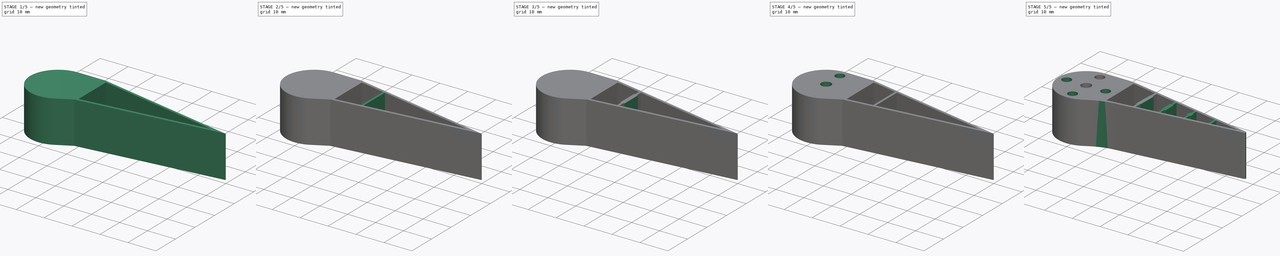
[diagram: build sequence overview — one tinted view per stage of 5, left to right]
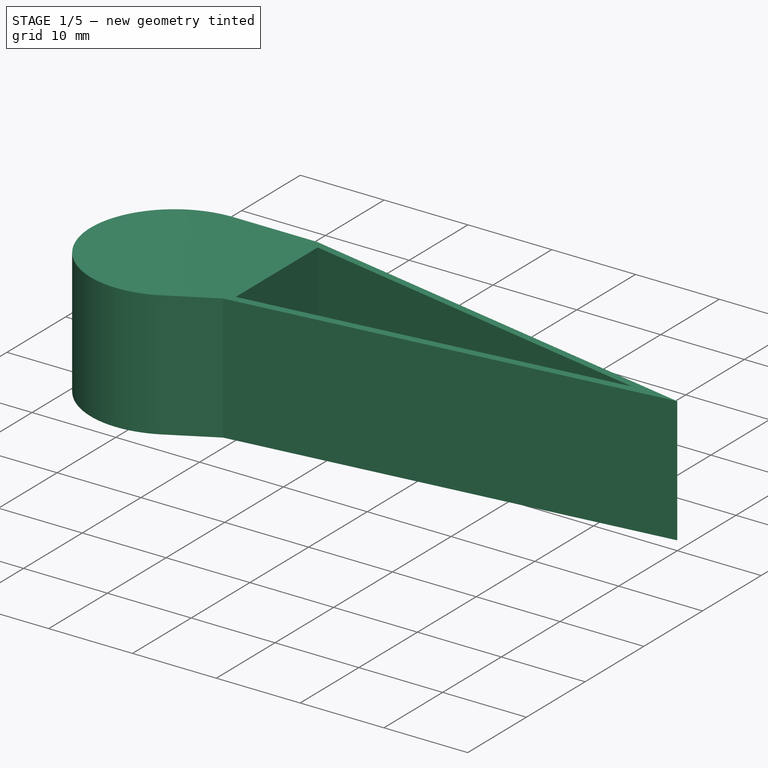
[diagram: stage 1 of 5 — iso view after this stage's code; geometry added in this stage tinted green]
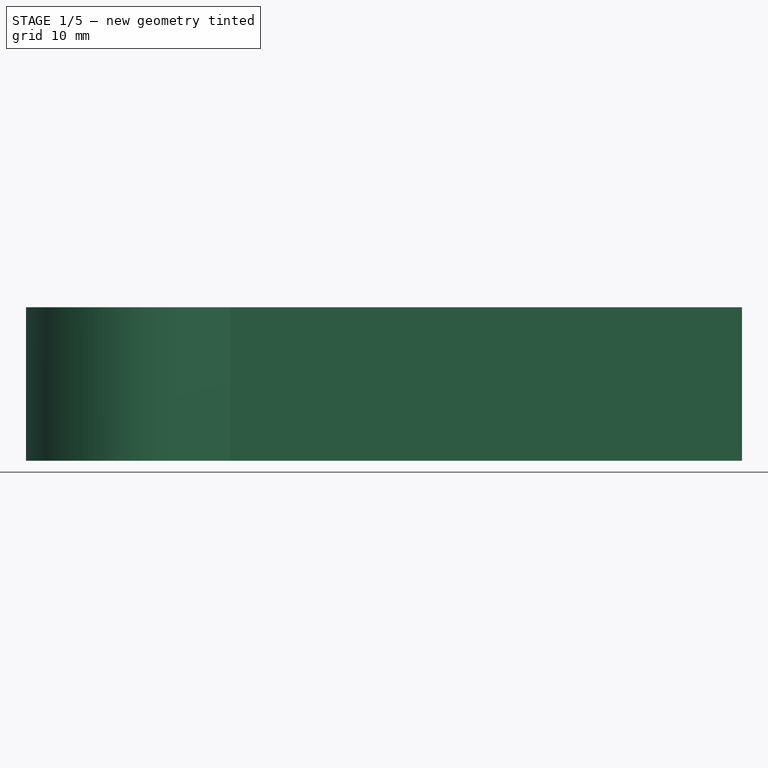
[diagram: stage 1 of 5 — front view after this stage's code; geometry added in this stage tinted green]
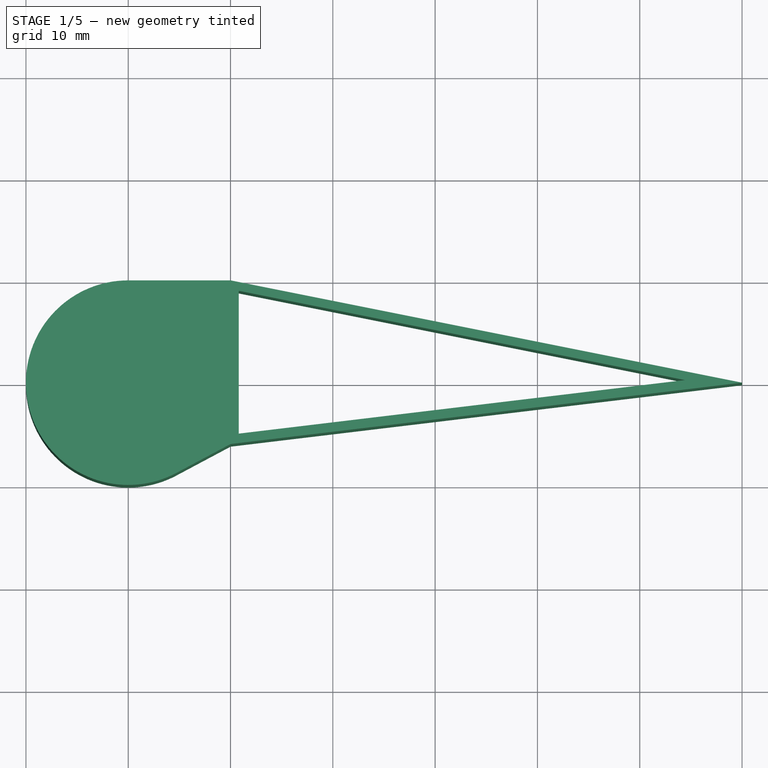
[diagram: stage 1 of 5 — top view after this stage's code; geometry added in this stage tinted green]
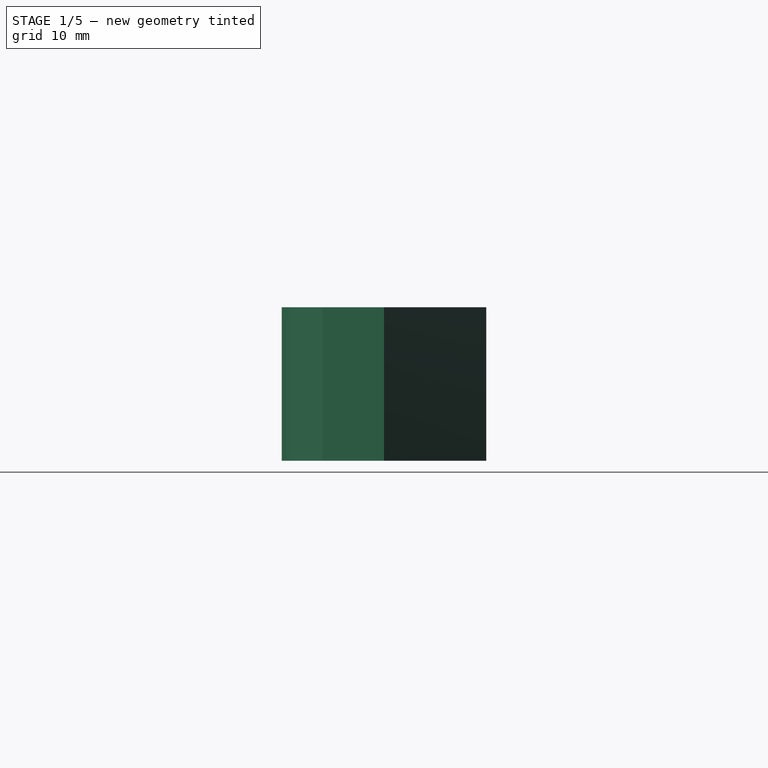
[diagram: stage 1 of 5 — right view after this stage's code; geometry added in this stage tinted green]
FCSTD DOCUMENT  (FreeCAD 2022.1128R26244 +5318 (Git))
Label: adptative-gripper-finger
License: Creative Commons Attribution-NoDerivatives
LicenseURL: http://creativecommons.org/licenses/by-nd/4.0/
objects: PartDesign::SubShapeBinder×11, Sketcher::SketchExport×5, PartDesign::Boolean×4, PartDesign::Body×4, Sketcher::SketchObject×4, Part::Extrusion×3, PartDesign::Pad×2, PartDesign::LinearPattern×2, PartDesign::Pocket×2, PartDesign::Fillet×2, Spreadsheet::Sheet×1, App::Link×1, PartDesign::PolarPattern×1, App::DocumentObjectGroup×1
note: 66 computed .brp shape members not serialized (recipe doc carries the construction recipe); baked Part::Feature solids carry a one-line shape summary decoded from their .brp

FEATURE [PartDesign::Body] Body  label="Nervure"
  AutoGroupSolids = false
  ClaimAllChildren = false
  ExportMode = 0
  Group = -> [Import001,Pad001,LinearPattern,Boolean001]
  Origin = -> Origin
  Tip = -> Boolean001
  TreeRank = 21
  _ExportChildren = -> [Pad001,LinearPattern,Boolean001]
  _GroupVersion = 1
FEATURE [Sketcher::SketchObject] Sketch002
  ArcFitTolerance = 1e-06
  AttachmentSupport = -> [XY_Plane003]
  ExternalBSplineMaxDegree = 0
  ExternalBSplineTolerance = 0
  FullyConstrained = true
  InternalTolerance = 1e-06
  MakeInternals = false
  MapMode = 5
  Support = -> [XY_Plane003]
  TreeRank = 77
  sketch-geometry (1):
    g0: Circle CenterX=0 CenterY=0 CenterZ=0 NormalX=0 NormalY=0 NormalZ=1 AngleXU=0 Radius=1.75
  constraints (2):
    c: Coincident(g0,g-1)
    c: Diameter(g0) = 3.5
FEATURE [Sketcher::SketchObject] Sketch003
  ArcFitTolerance = 1e-06
  AttachmentSupport = -> [XY_Plane003]
  ExternalBSplineMaxDegree = 0
  ExternalBSplineTolerance = 0
  FullyConstrained = true
  InternalTolerance = 1e-06
  MakeInternals = false
  MapMode = 5
  Support = -> [XY_Plane003]
  TreeRank = 79
  sketch-geometry (1):
    g0: Circle CenterX=0 CenterY=7 CenterZ=0 NormalX=0 NormalY=0 NormalZ=1 AngleXU=0 Radius=1.6
  constraints (3):
    c: PointOnObject(g0,g-2)
    c: Diameter(g0) = 3.2
    c: DistanceY(g0) = 7
FEATURE [App::Link] Link  label="Link(AdaptativeGripper)"
  AutoLinkLabel = true
  AutoPlacement = true
  LinkedObject = -> Body003
  ShowElement = false
  SyncGroupVisibility = false
  TreeRank = 82
  _LinkVersion = 1
FEATURE [PartDesign::SubShapeBinder] Reference009  label="Reference009(CorpsComplet)"
  BindCopyOnChange = 0
  BindMode = 0
  ClaimChildren = false
  EdgeTolerance = 1e-06
  FillStyle = 0
  Fuse = true
  MakeFace = true
  MergeEdges = true
  OffsetFill = false
  OffsetIntersection = false
  OffsetJoinType = 0
  OffsetOpenResult = false
  Outline = false
  PartialLoad = false
  Relative = true
  SplitEdges = false
  Support = -> [Extrude]
  TightBound = false
  TreeRank = 85
  _Version = 8
FEATURE [PartDesign::SubShapeBinder] Reference010  label="Reference010(CorpsInterieur)"
  BindCopyOnChange = 0
  BindMode = 0
  ClaimChildren = false
  EdgeTolerance = 1e-06
  FillStyle = 0
  Fuse = true
  MakeFace = true
  MergeEdges = true
  OffsetFill = false
  OffsetIntersection = false
  OffsetJoinType = 0
  OffsetOpenResult = false
  Outline = false
  PartialLoad = false
  Relative = true
  SplitEdges = false
  Support = -> [Extrude001]
  TightBound = false
  TreeRank = 86
  _Version = 8
FEATURE [PartDesign::Boolean] Boolean002
  ClaimAllChildren = false
  ExportMode = 0
  Group = -> [Reference009,Reference010]
  NewSolid = false
  Refine = true
  Suppress = false
  TreeRank = 58
  Type = 1
  _ExportChildren = -> [Reference009,Reference010]
  _GroupVersion = 1
FEATURE [PartDesign::Body] Body003  label="AdaptativeGripper"
  AutoGroupSolids = false
  ClaimAllChildren = false
  ExportMode = 0
  Group = -> [Boolean003,Sketch002,Pocket,Sketch003,Pocket001,PolarPattern,Fillet,Fillet001]
  Origin = -> Origin003
  Tip = -> Fillet001
  TreeRank = 71
  _ExportChildren = -> [Boolean003,Pocket,Pocket001,PolarPattern,Fillet,Fillet001]
  _GroupVersion = 1
FEATURE [Sketcher::SketchObject] Sketch
  ArcFitTolerance = 1e-06
  Exports = -> [Export001,Export002,Export005]
  ExternalBSplineMaxDegree = 0
  ExternalBSplineTolerance = 0
  FullyConstrained = true
  InternalTolerance = 1e-06
  MakeInternals = false
  TreeRank = 2
  expr: Constraints[12] = Spreadsheet.LongueurPince
  expr: Constraints[13] = Spreadsheet.LargeurPince
  expr: Constraints[14] = Spreadsheet.LargeurPince / 2 + Spreadsheet.DecalagePince
  expr: Constraints[27] = Spreadsheet.EpaisseurPince
  expr: Constraints[28] = Spreadsheet.LongueurJoint
  sketch-geometry (18):
    g0: ArcOfCircle CenterX=1.2424e-12 CenterY=2.454e-12 CenterZ=0 NormalX=0 NormalY=0 NormalZ=1 AngleXU=0 Radius=10 StartAngle=1.5708 EndAngle=5.20235
    g1: LineSegment StartX=-4.60203e-11 StartY=10 StartZ=0 EndX=10 EndY=10 EndZ=0
    g2: LineSegment StartX=4.70588 StartY=-8.82353 StartZ=0 EndX=10 EndY=-6 EndZ=0
    g3: LineSegment StartX=10 StartY=10 StartZ=0 EndX=60 EndY=2.593e-13 EndZ=0
    g4: LineSegment StartX=10 StartY=-6 StartZ=0 EndX=60 EndY=2.593e-13 EndZ=0
    g5: LineSegment [constr] StartX=10 StartY=10 StartZ=0 EndX=10 EndY=-6 EndZ=0
    g6: Circle [constr] CenterX=1.2424e-12 CenterY=2.454e-12 CenterZ=0 NormalX=0 NormalY=0 NormalZ=1 AngleXU=0 Radius=10
    g7: GeomPoint [constr] X=60 Y=2.591e-13 Z=0
    g8: LineSegment StartX=10.8 StartY=-4.98182 StartZ=0 EndX=10.8 EndY=8.98182 EndZ=0
    g9: LineSegment StartX=10.8 StartY=8.98182 StartZ=0 EndX=54.4364 EndY=0.254545 EndZ=0
    g10: LineSegment StartX=54.4364 StartY=0.254545 StartZ=0 EndX=10.8 EndY=-4.98182 EndZ=0
    g11: LineSegment StartX=10.8 StartY=-2.98182 StartZ=0 EndX=10.8 EndY=6.98182 EndZ=0
    g12: LineSegment StartX=10.8 StartY=6.98182 StartZ=0 EndX=41.9364 EndY=0.754545 EndZ=0
    g13: LineSegment StartX=41.9364 StartY=0.754545 StartZ=0 EndX=10.8 EndY=-2.98182 EndZ=0
    g14: GeomPoint [constr] X=10.8 Y=2 Z=0
    g15: LineSegment [constr] StartX=10.8 StartY=8.98182 StartZ=0 EndX=10 EndY=8.98182 EndZ=0
    g16: LineSegment [constr] StartX=10.8 StartY=2 StartZ=0 EndX=10 EndY=2 EndZ=0
    g17: LineSegment [constr] StartX=10 StartY=-6 StartZ=0 EndX=10.8 EndY=-4.98182 EndZ=0
  constraints (43):
    c: Coincident(g0,g-1)
    c: Tangent(g1,g0) = 1.5708
    c: Tangent(g2,g0) = -1.5708
    c: Coincident(g3,g1)
    c: Coincident(g4,g2)
    c: Diameter(g0) = 20
    c: Coincident(g5,g1)
    c: Coincident(g5,g2)
    c: Vertical(g5)
    c: Coincident(g6,g0)
    c: PointOnObject(g0,g6)
    c: Tangent(g5,g6)
    c: DistanceX(g1,g7) = 50
    c: DistanceY(g2,g1) = 16
    c: DistanceY(g1) = 10
    c: PointOnObject(g7,g-1)
    c: Vertical(g8)
    c: Coincident(g9,g8)
    c: Coincident(g10,g9)
    c: Coincident(g10,g8)
    c: Parallel(g9,g3)
    c: Parallel(g10,g4)
    c: Coincident(g12,g11)
    c: Coincident(g13,g12)
    c: Coincident(g13,g11)
    c: Parallel(g13,g10)
    c: Parallel(g12,g9)
    c: DistanceX(g2,g8) = 0.8
    c: DistanceY(g11,g8) = 2
    c: Symmetric(g11,g11,g14)
    c: Coincident(g15,g8)
    c: PointOnObject(g15,g5)
    c: Horizontal(g15)
    c: PointOnObject(g11,g8)
    c: Coincident(g16,g14)
    c: Horizontal(g16)
    c: Symmetric(g1,g2,g16)
    c: Symmetric(g8,g8,g14)
    c: Coincident(g17,g2)
    c: Coincident(g17,g8)
    c: Angle(g4,g17) = 0.785398
    c: Coincident(g3,g4)
    c: Coincident(g7,g3)
FEATURE [Sketcher::SketchExport] Export001
  Base = -> Sketch
  BaseRefs = -> Sketch [edge11,edge9,edge10]
  Refs = ;g15.edge11 | ;g13.edge9 | ;g14.edge10
  SyncPlacement = true
  TreeRank = 4
FEATURE [Sketcher::SketchExport] Export002
  Base = -> Sketch
  BaseRefs = -> Sketch [edge12,edge13,edge14]
  Refs = ;g19.edge12 | ;g20.edge13 | ;g21.edge14
  SyncPlacement = true
  TreeRank = 5
FEATURE [Sketcher::SketchObject] Sketch001
  ArcFitTolerance = 1e-06
  Exports = -> [Export003,Export004]
  ExternalBSplineMaxDegree = 0
  ExternalBSplineTolerance = 0
  FullyConstrained = true
  InternalTolerance = 1e-06
  MakeInternals = false
  Placement = pos=(0,0,0) rot=(-1,0,0;4.71239rad)
  TreeRank = 6
  expr: Constraints[12] = Spreadsheet.HauteurPince
  expr: Constraints[13] = Spreadsheet.DiametreFixation / 2 + Spreadsheet.LongueurPince / (Spreadsheet.NombreNervure + 1)
  expr: Constraints[14] = Spreadsheet.EpaisseurNervure
  expr: Constraints[25] = Spreadsheet.FinesseJoint
  sketch-geometry (9):
    g0: LineSegment StartX=19.25 StartY=1.5001e-12 StartZ=0 EndX=20.75 EndY=1.5001e-12 EndZ=0
    g1: LineSegment StartX=20.75 StartY=1.5001e-12 StartZ=0 EndX=20.75 EndY=15 EndZ=0
    g2: LineSegment StartX=20.75 StartY=15 StartZ=0 EndX=19.25 EndY=15 EndZ=0
    g3: LineSegment StartX=19.25 StartY=15 StartZ=0 EndX=19.25 EndY=1.4992e-12 EndZ=0
    g4: LineSegment [constr] StartX=20 StartY=15 StartZ=0 EndX=20 EndY=-1.7515e-12 EndZ=0
    g5: LineSegment StartX=19.6 StartY=15 StartZ=0 EndX=20.4 EndY=15 EndZ=0
    g6: LineSegment StartX=20.4 StartY=15 StartZ=0 EndX=20.4 EndY=5.169e-13 EndZ=0
    g7: LineSegment StartX=20.4 StartY=5.168e-13 StartZ=0 EndX=19.6 EndY=5.168e-13 EndZ=0
    g8: LineSegment StartX=19.6 StartY=5.168e-13 StartZ=0 EndX=19.6 EndY=15 EndZ=0
  constraints (26):
    c: Coincident(g0,g1)
    c: Coincident(g1,g2)
    c: Coincident(g2,g3)
    c: Coincident(g3,g0)
    c: Horizontal(g0)
    c: Horizontal(g2)
    c: Vertical(g1)
    c: Vertical(g3)
    c: PointOnObject(g0,g-1)
    c: PointOnObject(g4,g0)
    c: Vertical(g4)
    c: Symmetric(g2,g1,g4)
    c: DistanceY(g3,g3) = 15
    c: DistanceX(g4) = 20
    c: DistanceX(g2,g2) = 1.5
    c: Coincident(g5,g6)
    c: Coincident(g6,g7)
    c: Coincident(g7,g8)
    c: Coincident(g8,g5)
    c: Horizontal(g5)
    c: Horizontal(g7)
    c: Vertical(g6)
    c: Vertical(g8)
    c: PointOnObject(g5,g2)
    c: Symmetric(g7,g6,g4)
    c: DistanceX(g5,g5) = 0.8
FEATURE [Sketcher::SketchExport] Export003
  Base = -> Sketch001
  BaseRefs = -> Sketch001 [edge3,edge4,edge2,edge1]
  Placement = pos=(0,0,0) rot=(-1,0,0;4.71239rad)
  Refs = ;g3.edge3 | ;g4.edge4 | ;g2.edge2 | ;g1.edge1
  SyncPlacement = true
  TreeRank = 7
FEATURE [Sketcher::SketchExport] Export004
  Base = -> Sketch001
  BaseRefs = -> Sketch001 [edge6,edge7,edge8,edge9]
  Placement = pos=(0,0,0) rot=(-1,0,0;4.71239rad)
  Refs = ;g6.edge6 | ;g7.edge7 | ;g8.edge8 | ;g9.edge9
  SyncPlacement = true
  TreeRank = 8
FEATURE [Part::Extrusion] Extrude001  label="CorpsInterieur"
  AutoTaperInnerAngle = false
  Base = -> Export001
  Dir = (0,0,1)
  DirMode = 2
  FaceMakerClass = Part::FaceMakerBullseye
  LengthFwd = 16
  LengthRev = 0
  Linearize = true
  Solid = true
  Symmetric = false
  TaperInnerAngle = 0
  TaperInnerAngleRev = 0
  TreeRank = 10
  expr: LengthFwd = Spreadsheet.HauteurPince + 1
FEATURE [App::DocumentObjectGroup] Group  label="Tools"
  ClaimAllChildren = true
  ExportMode = 1
  Group = -> [Spreadsheet,Sketch,Sketch001,Extrude001,Extrude002,Extrude,Body,Body001,Body002,Export003,Export004]
  TreeRank = 70
  _GroupVersion = 1
FEATURE [Sketcher::SketchExport] Export005
  Base = -> Sketch
  BaseRefs = -> Sketch [edge1,edge3,edge5,edge4,edge2]
  Refs = ;g1.edge1 | ;g3.edge3 | ;g5.edge5 | ;g4.edge4 | ;g2.edge2
  SyncPlacement = true
  TreeRank = 83
FEATURE [Part::Extrusion] Extrude  label="CorpsComplet"
  AutoTaperInnerAngle = false
  Base = -> Export005
  Dir = (0,0,1)
  DirMode = 2
  FaceMakerClass = Part::FaceMakerBullseye
  LengthFwd = 15
  LengthRev = 0
  Linearize = true
  Solid = true
  Symmetric = false
  TaperInnerAngle = 0
  TaperInnerAngleRev = 0
  TreeRank = 84
  expr: LengthFwd = Spreadsheet.HauteurPince
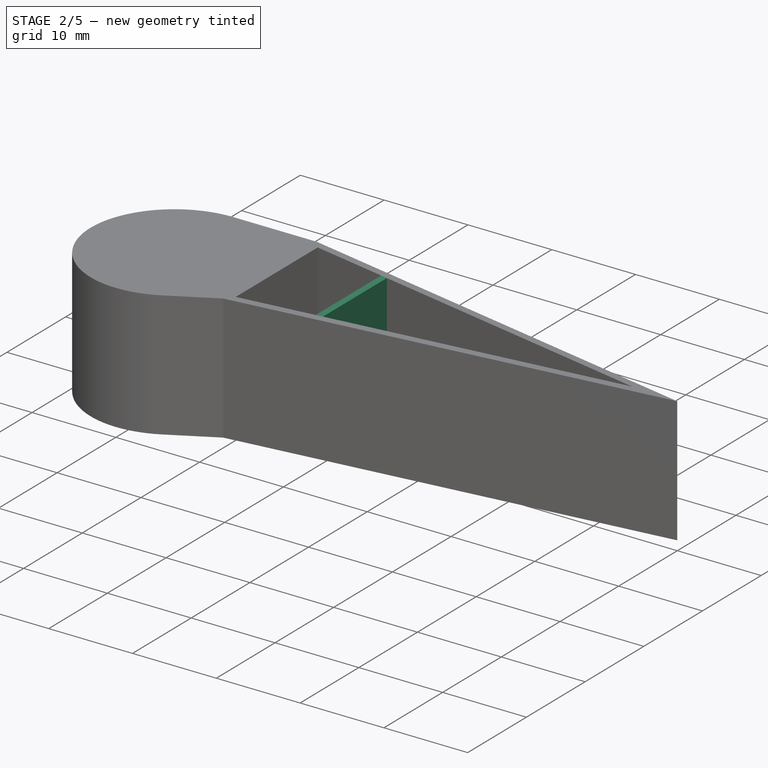
[diagram: stage 2 of 5 — iso view after this stage's code; geometry added in this stage tinted green]
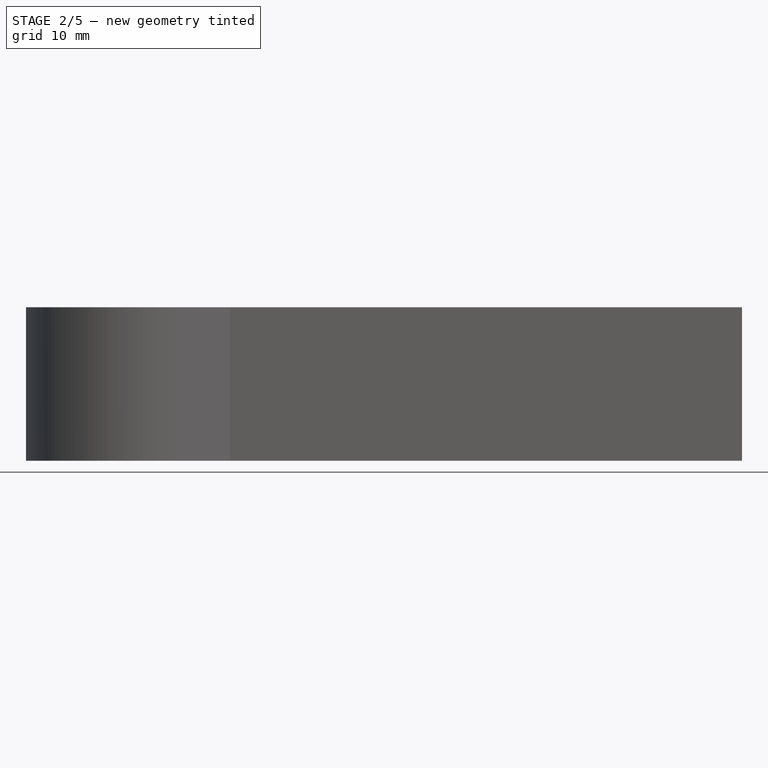
[diagram: stage 2 of 5 — front view after this stage's code; geometry added in this stage tinted green]
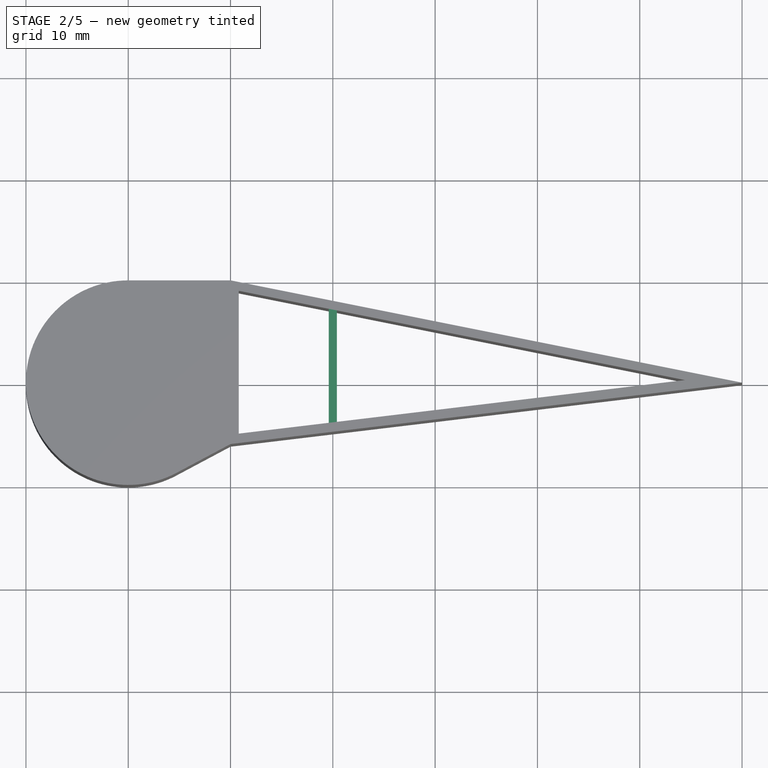
[diagram: stage 2 of 5 — top view after this stage's code; geometry added in this stage tinted green]
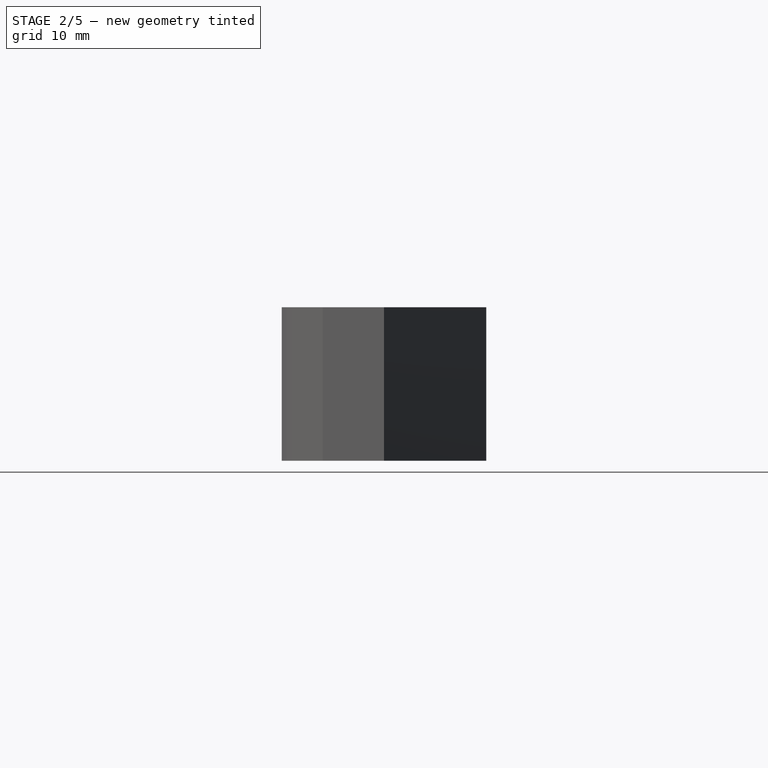
[diagram: stage 2 of 5 — right view after this stage's code; geometry added in this stage tinted green]
FEATURE [Spreadsheet::Sheet] Spreadsheet
  PythonMode = false
  ShowCells = 0
  TreeRank = 1
  cells = G4=PINCE GLOBALE; G5=Largeur; H5(LargeurPince)=16; G6=Longueur; H6(LongueurPince)=50; G7=Hauteur; H7(HauteurPince)=15; G8=Decalage; H8(DecalagePince)=2; G9=Epaisseur; H9(EpaisseurPince)=0.8; G10=Diamètre; H10(DiametrePince)=4; G11=NERVURES; G12=Nombre; H12(NombreNervure)=4; G13=Epaisseur; H13(EpaisseurNervure)=1.5; G14=Epaisseur fine; H14(FinesseJoint)=0.8; G15=Longueur joint; H15(LongueurJoint)=2; G16=FIXATION; G17=Diametre; H17(DiametreFixation)=20
FEATURE [PartDesign::SubShapeBinder] Import  label="Import(Export004)"
  BindCopyOnChange = 0
  BindMode = 0
  ClaimChildren = false
  Context = -> Group [Body001.Import.]
  EdgeTolerance = 1e-06
  FillStyle = 0
  Fuse = false
  MakeFace = false
  MergeEdges = true
  OffsetFill = false
  OffsetIntersection = false
  OffsetJoinType = 0
  OffsetOpenResult = false
  Outline = false
  PartialLoad = false
  Relative = true
  SplitEdges = false
  Support = -> [Export004]
  TightBound = false
  TreeRank = 32
  _Version = 8
FEATURE [PartDesign::Pad] Pad
  AddSubType = 0
  AlongSketchNormal = false
  AutoTaperInnerAngle = false
  CheckUpToFaceLimits = true
  ClaimChildren = false
  Direction = (0,1,-2e-16)
  Fit = 0
  FitJoin = 0
  InnerFit = 0
  InnerFitJoin = 0
  Length = 32
  Length2 = 100
  Linearize = true
  Midplane = true
  NewSolid = false
  Profile = -> Import
  Refine = true
  Suppress = false
  TaperInnerAngle = 0
  TaperInnerAngleRev = 0
  TreeRank = 33
  Type = 0
  _ProfileBasedVersion = 1
  expr: Length = Spreadsheet.LargeurPince * 2
FEATURE [PartDesign::LinearPattern] LinearPattern001
  AddSubType = 0
  BaseFeature = -> Pad
  CopyShape = false
  Direction = -> X_Axis001
  Length = 25
  NewSolid = false
  Occurrences = 4
  OriginalSubs = -> [Pad]
  Originals = -> [Pad]
  ParallelTransform = true
  Refine = true
  SubTransform = true
  Suppress = false
  TreeRank = 37
  _Version = 3
  expr: Length = Spreadsheet.LongueurPince - 2 * Spreadsheet.LongueurPince / Spreadsheet.NombreNervure
  expr: Occurrences = Spreadsheet.NombreNervure
FEATURE [PartDesign::SubShapeBinder] Reference  label="Reference(CorpsInterieur)"
  BindCopyOnChange = 0
  BindMode = 0
  ClaimChildren = false
  Context = -> Body001 [Reference.]
  EdgeTolerance = 1e-06
  FillStyle = 0
  Fuse = false
  MakeFace = true
  MergeEdges = true
  OffsetFill = false
  OffsetIntersection = false
  OffsetJoinType = 0
  OffsetOpenResult = false
  Outline = false
  PartialLoad = false
  Relative = true
  SplitEdges = false
  Support = -> [Extrude001]
  TightBound = false
  TreeRank = 41
  _Version = 8
FEATURE [PartDesign::SubShapeBinder] Reference001  label="Reference001(LinearPattern001)"
  BindCopyOnChange = 0
  BindMode = 0
  ClaimChildren = false
  Context = -> Body001 [Reference001.]
  EdgeTolerance = 1e-06
  FillStyle = 0
  Fuse = false
  MakeFace = true
  MergeEdges = true
  OffsetFill = false
  OffsetIntersection = false
  OffsetJoinType = 0
  OffsetOpenResult = false
  Outline = false
  PartialLoad = false
  Relative = true
  SplitEdges = false
  Support = -> [LinearPattern001]
  TightBound = false
  TreeRank = 42
  _Version = 8
FEATURE [PartDesign::Boolean] Boolean
  BaseFeature = -> LinearPattern001
  ClaimAllChildren = false
  ExportMode = 0
  Group = -> [Reference,Reference001]
  NewSolid = false
  Refine = true
  Suppress = false
  TreeRank = 38
  Type = 2
  _ExportChildren = -> [Reference,Reference001]
  _GroupVersion = 1
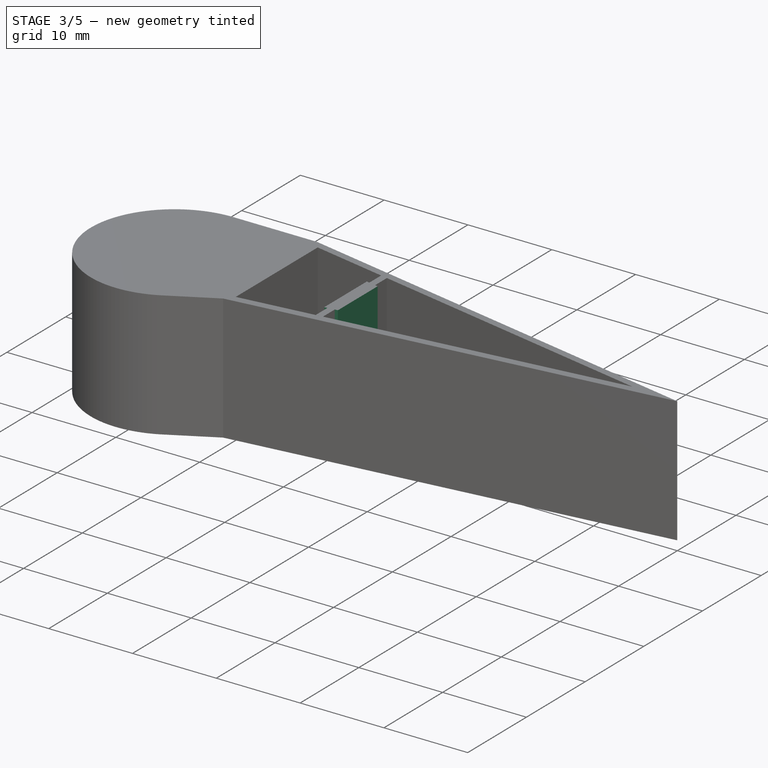
[diagram: stage 3 of 5 — iso view after this stage's code; geometry added in this stage tinted green]
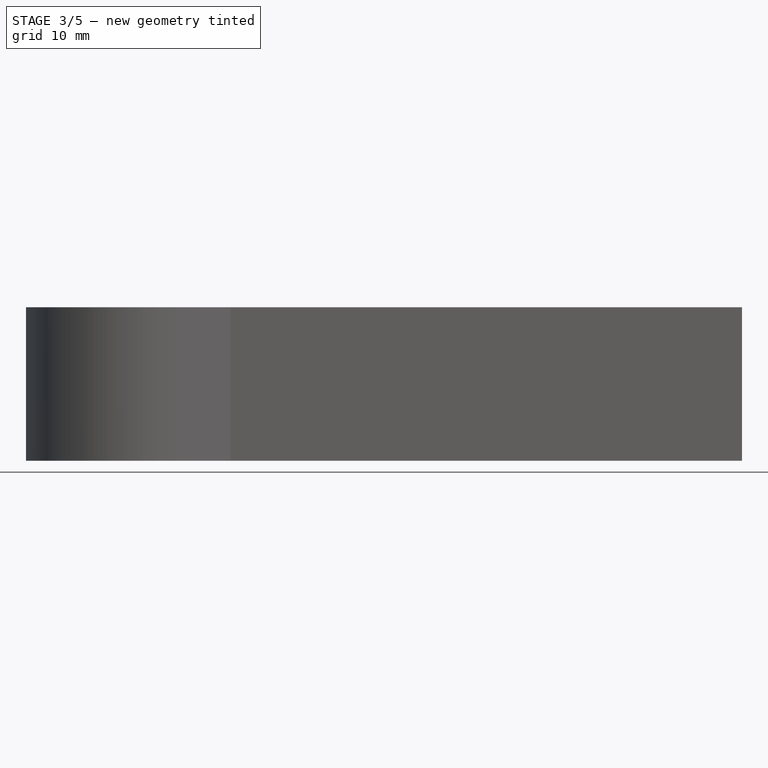
[diagram: stage 3 of 5 — front view after this stage's code; geometry added in this stage tinted green]
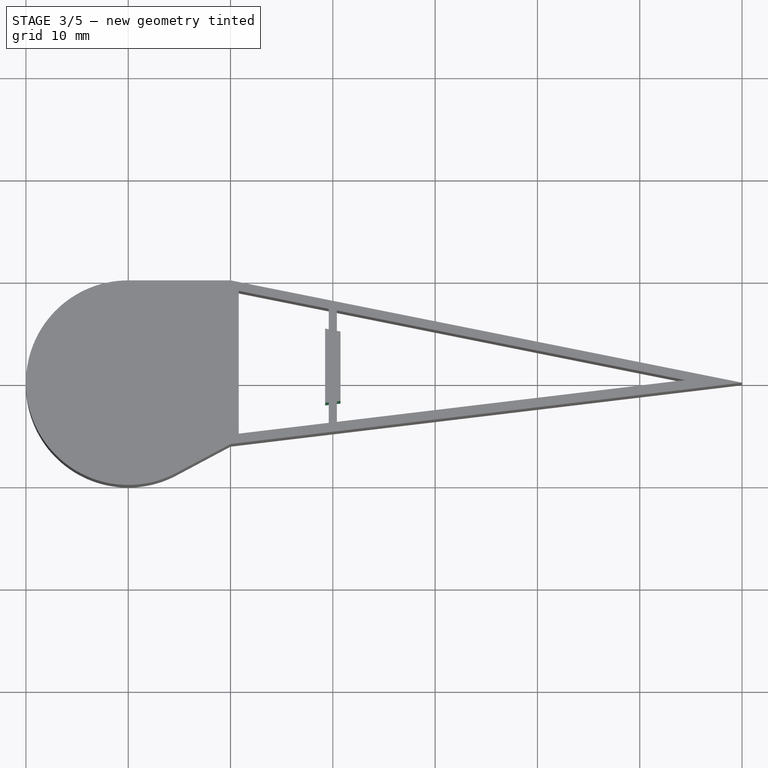
[diagram: stage 3 of 5 — top view after this stage's code; geometry added in this stage tinted green]
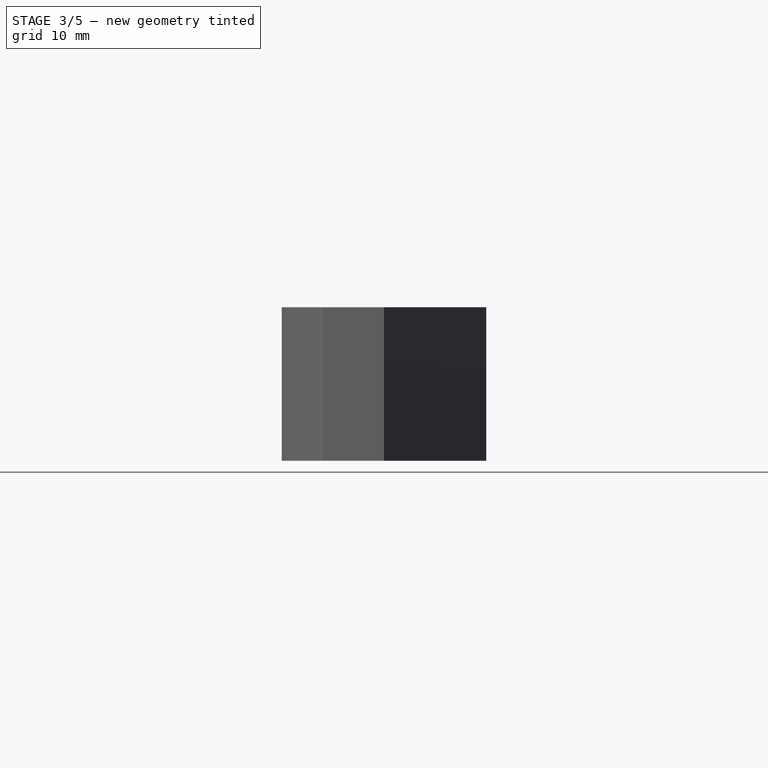
[diagram: stage 3 of 5 — right view after this stage's code; geometry added in this stage tinted green]
FEATURE [PartDesign::SubShapeBinder] Import001  label="Import001(Export003)"
  BindCopyOnChange = 0
  BindMode = 0
  ClaimChildren = false
  Context = -> Group [Body.Import001.]
  EdgeTolerance = 1e-06
  FillStyle = 0
  Fuse = false
  MakeFace = false
  MergeEdges = true
  OffsetFill = false
  OffsetIntersection = false
  OffsetJoinType = 0
  OffsetOpenResult = false
  Outline = false
  PartialLoad = false
  Relative = true
  SplitEdges = false
  Support = -> [Export003]
  TightBound = false
  TreeRank = 34
  _Version = 8
FEATURE [PartDesign::Pad] Pad001
  AddSubType = 0
  AlongSketchNormal = false
  AutoTaperInnerAngle = false
  CheckUpToFaceLimits = true
  ClaimChildren = false
  Direction = (0,1,-2e-16)
  Fit = 0
  FitJoin = 0
  InnerFit = 0
  InnerFitJoin = 0
  Length = 32
  Length2 = 100
  Linearize = true
  Midplane = true
  NewSolid = false
  Profile = -> Import001
  Refine = true
  Suppress = false
  TaperInnerAngle = 0
  TaperInnerAngleRev = 0
  TreeRank = 35
  Type = 0
  _ProfileBasedVersion = 1
  expr: Length = Spreadsheet.LargeurPince * 2
FEATURE [PartDesign::LinearPattern] LinearPattern
  AddSubType = 0
  BaseFeature = -> Pad001
  CopyShape = false
  Direction = -> X_Axis
  Length = 25
  NewSolid = false
  Occurrences = 4
  OriginalSubs = -> [Pad001]
  Originals = -> [Pad001]
  ParallelTransform = true
  Refine = true
  SubTransform = true
  Suppress = false
  TreeRank = 36
  _Version = 3
  expr: Length = Spreadsheet.LongueurPince - 2 * Spreadsheet.LongueurPince / Spreadsheet.NombreNervure
  expr: Occurrences = Spreadsheet.NombreNervure
FEATURE [PartDesign::Body] Body001  label="Joint"
  AutoGroupSolids = false
  ClaimAllChildren = false
  ExportMode = 0
  Group = -> [Import,Pad,LinearPattern001,Boolean]
  Origin = -> Origin001
  Tip = -> Boolean
  TreeRank = 31
  _ExportChildren = -> [Pad,LinearPattern001,Boolean]
  _GroupVersion = 1
FEATURE [PartDesign::SubShapeBinder] Reference002  label="Reference002(CorpsNervure)"
  BindCopyOnChange = 0
  BindMode = 0
  ClaimChildren = false
  Context = -> Body [Reference002.]
  EdgeTolerance = 1e-06
  FillStyle = 0
  Fuse = false
  MakeFace = true
  MergeEdges = true
  OffsetFill = false
  OffsetIntersection = false
  OffsetJoinType = 0
  OffsetOpenResult = false
  Outline = false
  PartialLoad = false
  Relative = true
  SplitEdges = false
  Support = -> [Extrude002]
  TightBound = false
  TreeRank = 46
  _Version = 8
FEATURE [PartDesign::SubShapeBinder] Reference003  label="Reference003(LinearPattern)"
  BindCopyOnChange = 0
  BindMode = 0
  ClaimChildren = false
  Context = -> Body [Reference003.]
  EdgeTolerance = 1e-06
  FillStyle = 0
  Fuse = false
  MakeFace = true
  MergeEdges = true
  OffsetFill = false
  OffsetIntersection = false
  OffsetJoinType = 0
  OffsetOpenResult = false
  Outline = false
  PartialLoad = false
  Relative = true
  SplitEdges = false
  Support = -> [LinearPattern]
  TightBound = false
  TreeRank = 47
  _Version = 8
FEATURE [PartDesign::Boolean] Boolean001
  BaseFeature = -> LinearPattern
  ClaimAllChildren = false
  ExportMode = 0
  Group = -> [Reference002,Reference003]
  NewSolid = false
  Refine = true
  Suppress = false
  TreeRank = 43
  Type = 2
  _ExportChildren = -> [Reference002,Reference003]
  _GroupVersion = 1
FEATURE [Part::Extrusion] Extrude002  label="CorpsNervure"
  AutoTaperInnerAngle = false
  Base = -> Export002
  Dir = (0,0,1)
  DirMode = 2
  FaceMakerClass = Part::FaceMakerBullseye
  LengthFwd = 15
  LengthRev = 0
  Linearize = true
  Solid = true
  Symmetric = false
  TaperInnerAngle = 0
  TaperInnerAngleRev = 0
  TreeRank = 11
  expr: LengthFwd = Spreadsheet.HauteurPince
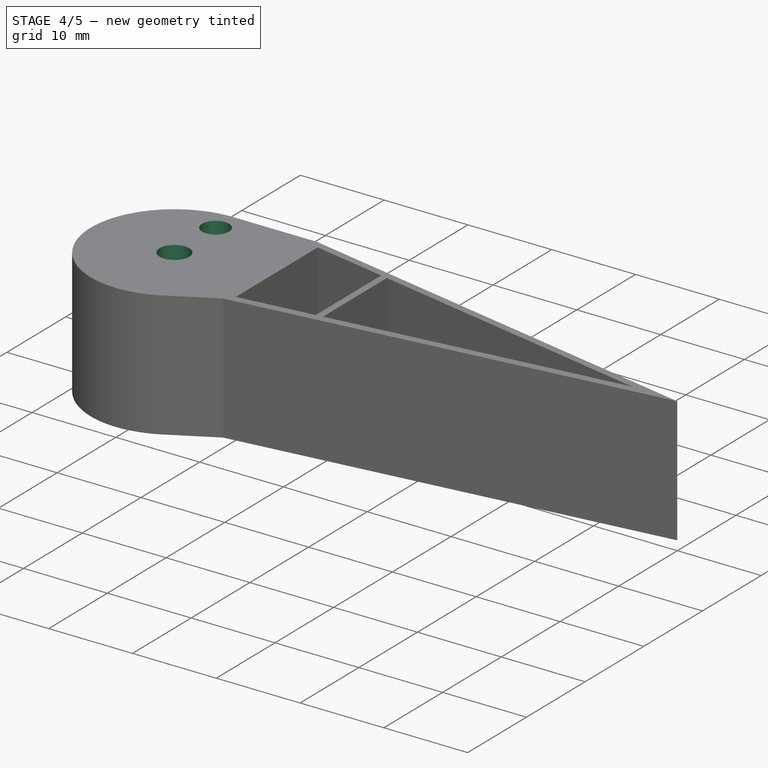
[diagram: stage 4 of 5 — iso view after this stage's code; geometry added in this stage tinted green]
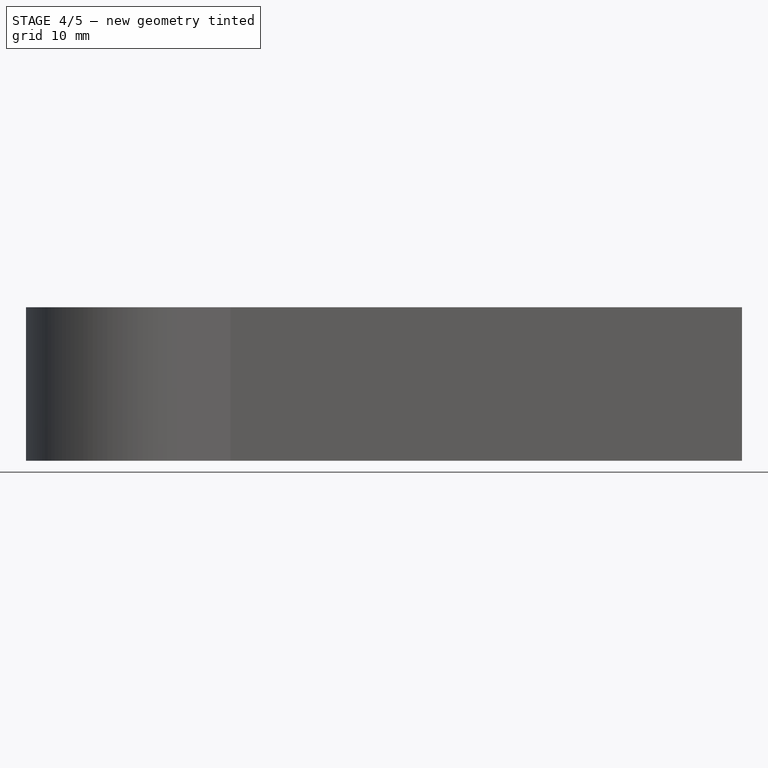
[diagram: stage 4 of 5 — front view after this stage's code; geometry added in this stage tinted green]
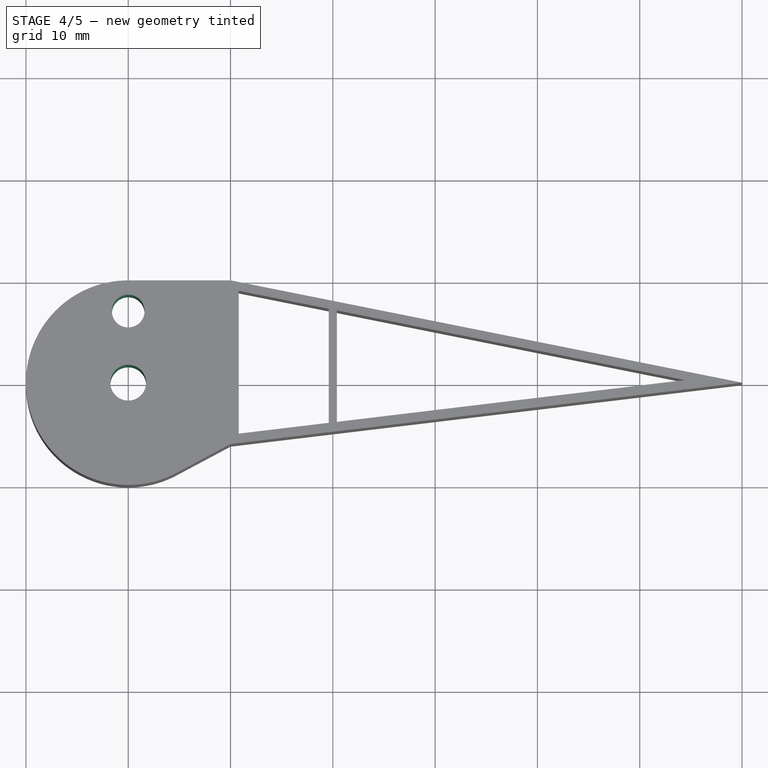
[diagram: stage 4 of 5 — top view after this stage's code; geometry added in this stage tinted green]
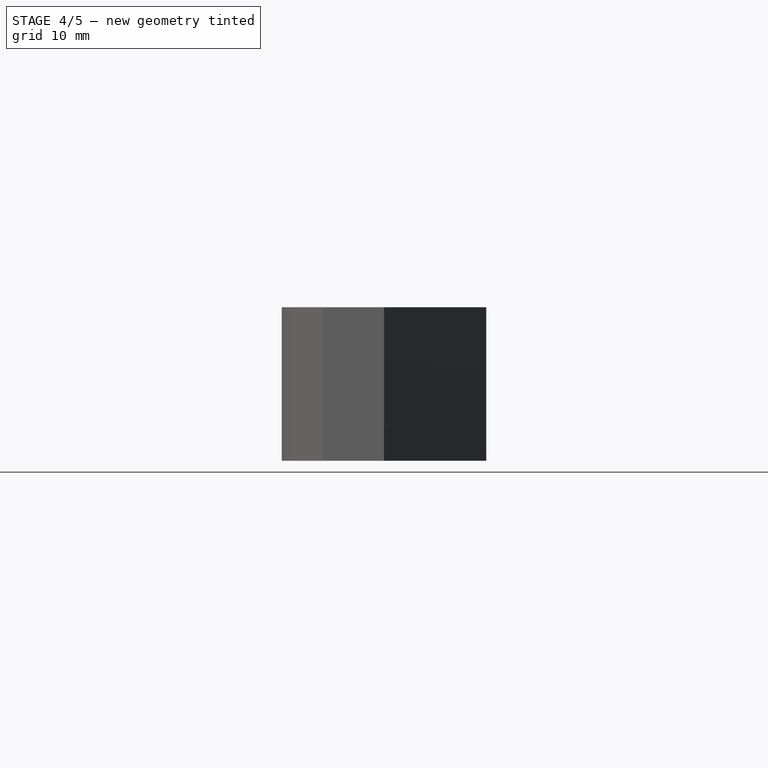
[diagram: stage 4 of 5 — right view after this stage's code; geometry added in this stage tinted green]
FEATURE [PartDesign::Body] Body002  label="Corps"
  AutoGroupSolids = false
  ClaimAllChildren = false
  ExportMode = 0
  Group = -> [Boolean002]
  Origin = -> Origin002
  SingleSolid = true
  Tip = -> Boolean002
  TreeRank = 57
  _ExportChildren = -> [Boolean002]
  _GroupVersion = 1
FEATURE [PartDesign::SubShapeBinder] Reference011  label="Reference011(Nervure)"
  BindCopyOnChange = 0
  BindMode = 0
  ClaimChildren = false
  EdgeTolerance = 1e-06
  FillStyle = 0
  Fuse = true
  MakeFace = true
  MergeEdges = true
  OffsetFill = false
  OffsetIntersection = false
  OffsetJoinType = 0
  OffsetOpenResult = false
  Outline = false
  PartialLoad = false
  Relative = true
  SplitEdges = false
  Support = -> [Body]
  TightBound = false
  TreeRank = 87
  _Version = 8
FEATURE [PartDesign::SubShapeBinder] Reference012  label="Reference012(Joint)"
  BindCopyOnChange = 0
  BindMode = 0
  ClaimChildren = false
  EdgeTolerance = 1e-06
  FillStyle = 0
  Fuse = true
  MakeFace = true
  MergeEdges = true
  OffsetFill = false
  OffsetIntersection = false
  OffsetJoinType = 0
  OffsetOpenResult = false
  Outline = false
  PartialLoad = false
  Relative = true
  SplitEdges = false
  Support = -> [Body001]
  TightBound = false
  TreeRank = 88
  _Version = 8
FEATURE [PartDesign::SubShapeBinder] Reference013  label="Reference013(Corps)"
  BindCopyOnChange = 0
  BindMode = 0
  ClaimChildren = false
  EdgeTolerance = 1e-06
  FillStyle = 0
  Fuse = true
  MakeFace = true
  MergeEdges = true
  OffsetFill = false
  OffsetIntersection = false
  OffsetJoinType = 0
  OffsetOpenResult = false
  Outline = false
  PartialLoad = false
  Relative = true
  SplitEdges = false
  Support = -> [Body002]
  TightBound = false
  TreeRank = 89
  _Version = 8
FEATURE [PartDesign::Boolean] Boolean003
  ClaimAllChildren = false
  ExportMode = 0
  Group = -> [Reference011,Reference012,Reference013]
  NewSolid = false
  Refine = true
  Suppress = false
  TreeRank = 76
  Type = 0
  _ExportChildren = -> [Reference011,Reference012,Reference013]
  _GroupVersion = 1
FEATURE [PartDesign::Pocket] Pocket
  AddSubType = 1
  AutoTaperInnerAngle = false
  BaseFeature = -> Boolean003
  CheckUpToFaceLimits = true
  ClaimChildren = false
  Fit = 0
  FitJoin = 0
  InnerFit = 0
  InnerFitJoin = 0
  Length = 5
  Length2 = 100
  Linearize = true
  Midplane = true
  NewSolid = false
  Profile = -> Sketch002
  Refine = true
  Suppress = false
  TaperInnerAngle = 0
  TaperInnerAngleRev = 0
  TreeRank = 78
  Type = 1
  _ProfileBasedVersion = 1
  _Version = 1
FEATURE [PartDesign::Pocket] Pocket001
  AddSubType = 1
  AutoTaperInnerAngle = false
  BaseFeature = -> Pocket
  CheckUpToFaceLimits = true
  ClaimChildren = false
  Fit = 0
  FitJoin = 0
  InnerFit = 0
  InnerFitJoin = 0
  Length = 5
  Length2 = 100
  Linearize = true
  Midplane = true
  NewSolid = false
  Profile = -> Sketch003
  Refine = true
  Suppress = false
  TaperInnerAngle = 0
  TaperInnerAngleRev = 0
  TreeRank = 80
  Type = 1
  _ProfileBasedVersion = 1
  _Version = 1
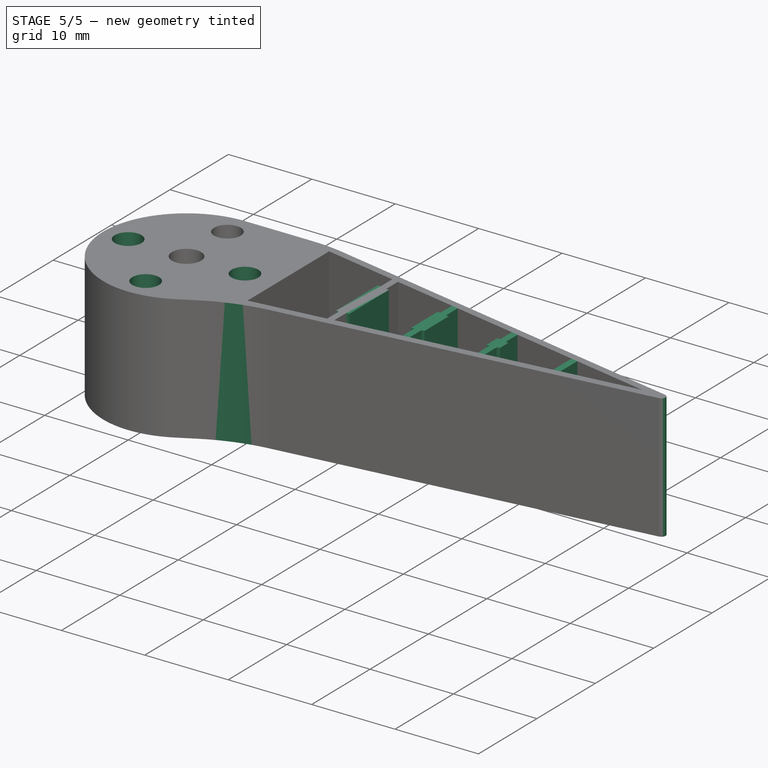
[diagram: stage 5 of 5 — iso view after this stage's code; geometry added in this stage tinted green]
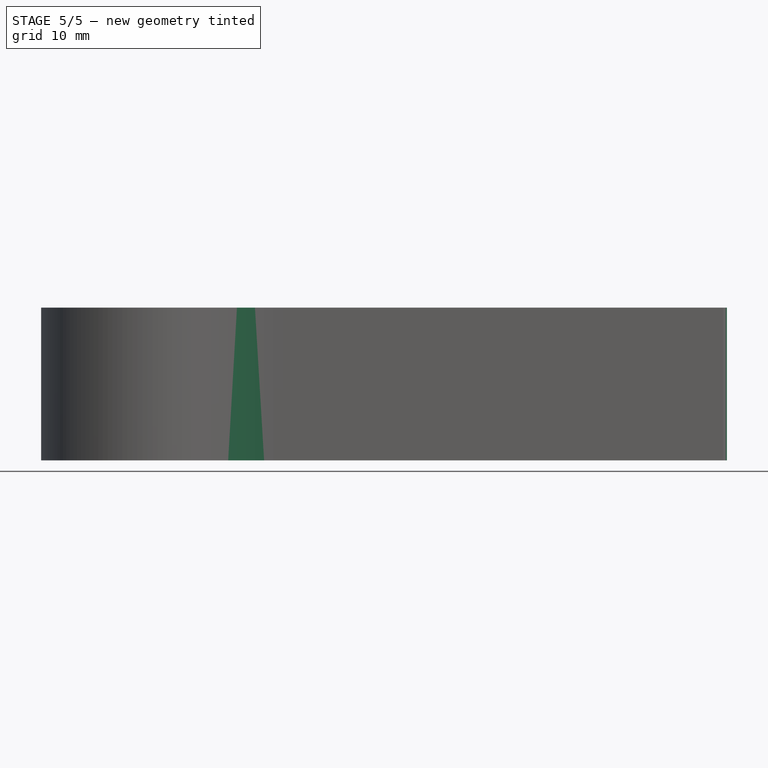
[diagram: stage 5 of 5 — front view after this stage's code; geometry added in this stage tinted green]
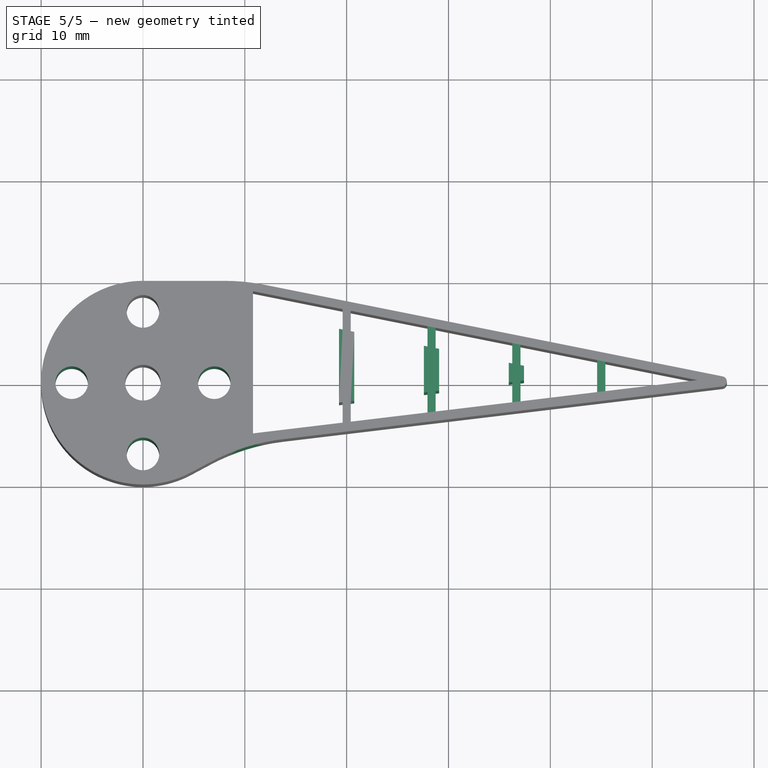
[diagram: stage 5 of 5 — top view after this stage's code; geometry added in this stage tinted green]
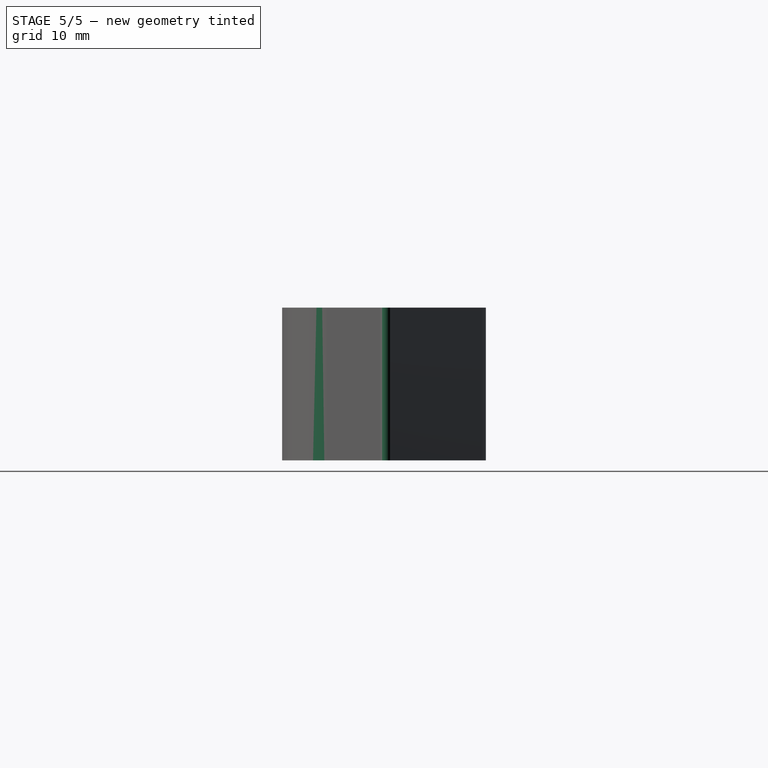
[diagram: stage 5 of 5 — right view after this stage's code; geometry added in this stage tinted green]
FEATURE [PartDesign::PolarPattern] PolarPattern
  AddSubType = 0
  Angle = 360
  Axis = -> Sketch003 [N_Axis]
  BaseFeature = -> Pocket001
  CopyShape = false
  NewSolid = false
  Occurrences = 4
  OriginalSubs = -> [Pocket001]
  Originals = -> [Pocket001]
  ParallelTransform = true
  Refine = true
  SubTransform = true
  Suppress = false
  TreeRank = 81
  _Version = 3
FEATURE [PartDesign::Fillet] Fillet
  AddSubType = 0
  Base = -> PolarPattern [Edge111]
  BaseFeature = -> PolarPattern
  NewSolid = false
  Radius = 0.5
  Refine = true
  SupportTransform = false
  Suppress = false
  TreeRank = 90
FEATURE [PartDesign::Fillet] Fillet001
  AddSubType = 0
  Base = -> Fillet [Edge62,Edge56]
  BaseFeature = -> Fillet
  NewSolid = false
  Radius = 20
  Refine = true
  SupportTransform = false
  Suppress = false
  TreeRank = 91
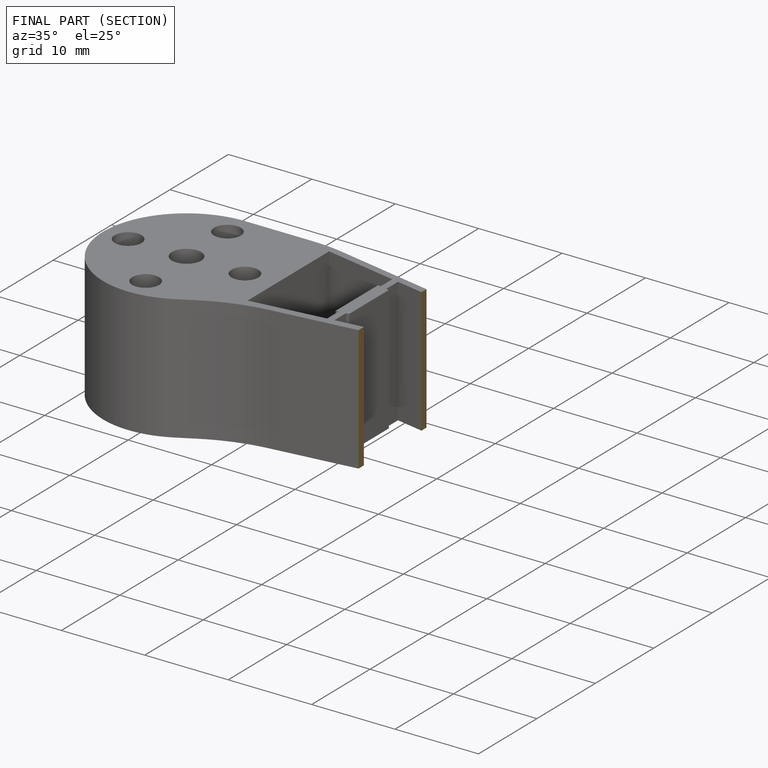
[diagram: finished part — half-section view (interior)]
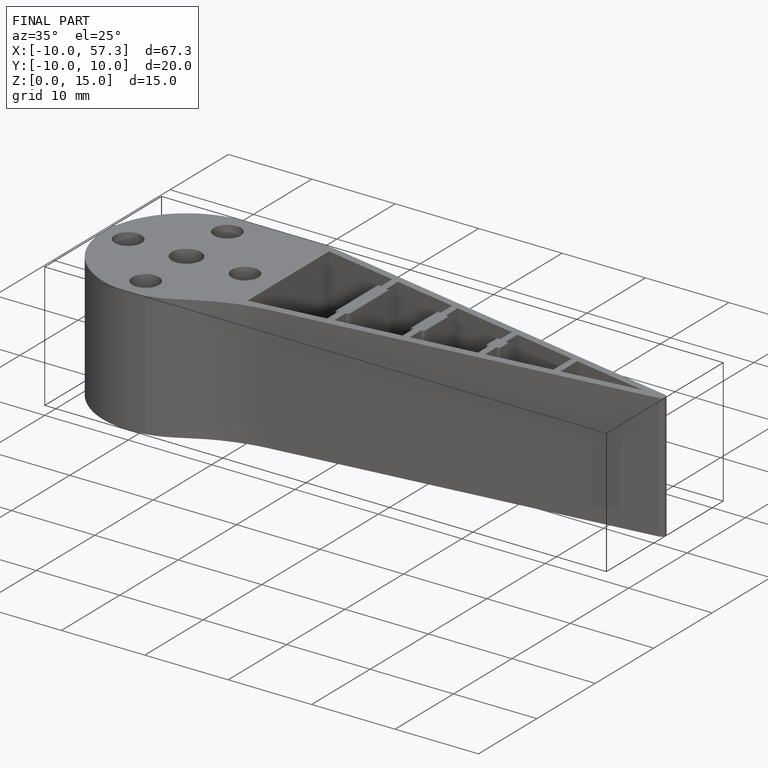
[diagram: finished part — iso view with bounding-box wireframe]
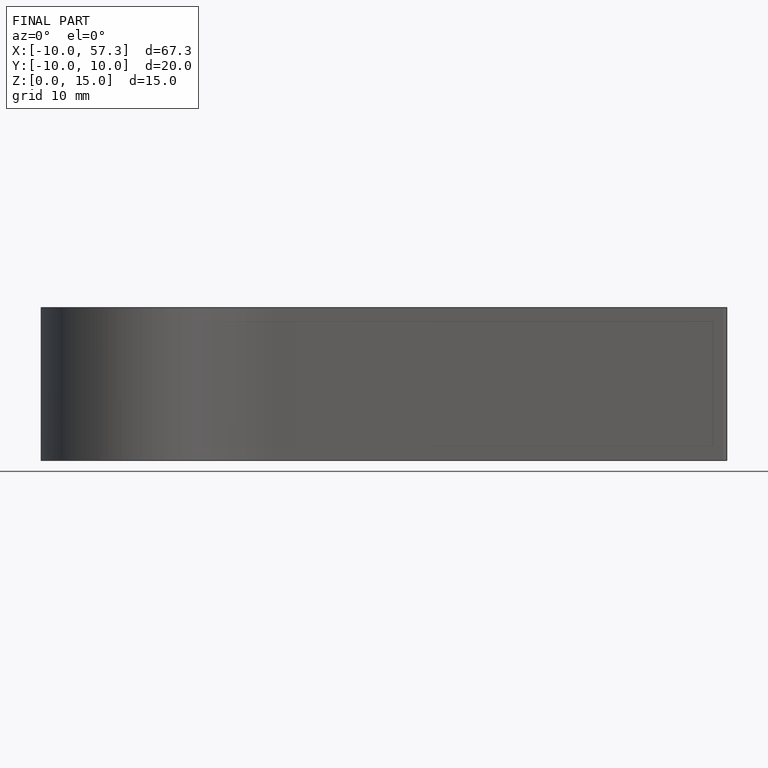
[diagram: finished part — front view with bounding-box wireframe]
